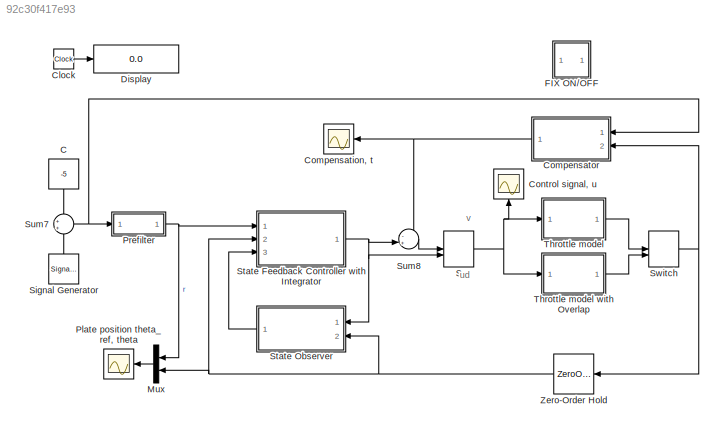
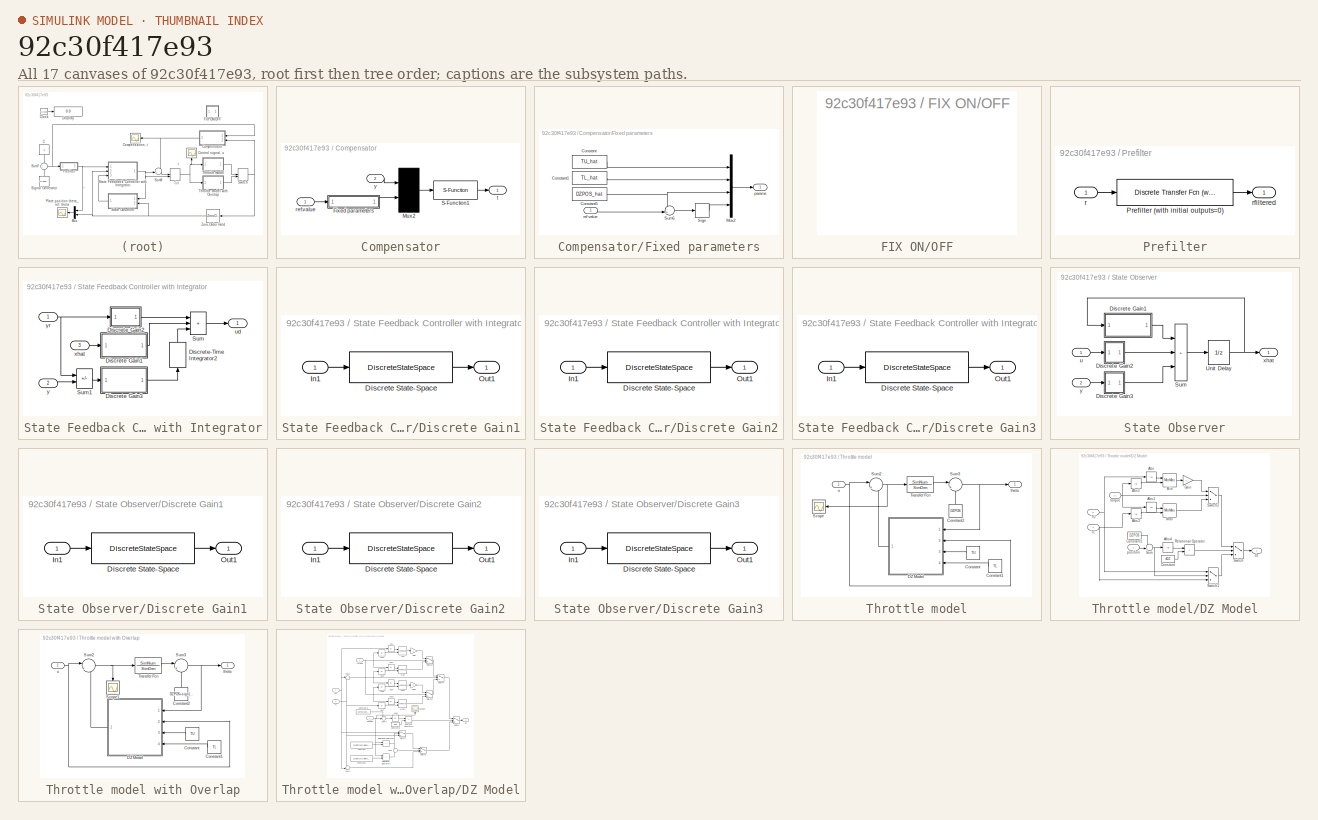
[diagram: thumbnail index - all 17 canvases of the model, root first then tree order]
MODEL mdl_92c30f417e93
KIND model
CONFIG AbsTol = auto
CONFIG EnableMultiTasking = off
CONFIG FixedStep = 0.001
CONFIG MaxStep = auto
CONFIG MinStep = auto
CONFIG RelTol = 1e-3
CONFIG SampleTimeConstraint = Unconstrained
CONFIG SolverName = ode45
CONFIG StartTime = 0.0
CONFIG StopTime = 2
BLOCK [Constant] C
  NameLocation = left
  Value = -5
BLOCK [Clock] Clock
BLOCK [Scope] Compensation, t
  Floating = off
  NumInputPorts = 1
  Ports = [1]
  ScopeSpecificationString = Simulink.scopes.TimeScopeBlockCfg('CurrentConfiguration', extmgr.ConfigurationSet(extmgr.Configuration('Core','General UI',true),extmgr.Configuration('Core','Source UI',true),extmgr.Configuration('Sources','WiredSimulink',true,'DataLoggingSaveFormat','StructureWithTime','DataLoggingLimitDataPoints',true,'DataLoggingDecimation','1','DataLoggingDecimateData',true),extmgr.Configuration('Visuals','Tim...<+1650ch>
BLOCK [SubSystem] Compensator
  Ports = [2, 1]
  RequestExecContextInheritance = off
BLOCK [SubSystem] Compensator/Fixed parameters
  Ports = [1, 1]
  RequestExecContextInheritance = off
BLOCK [Constant] Compensator/Fixed parameters/Constant
  Value = TU_hat
BLOCK [Constant] Compensator/Fixed parameters/Constant1
  Value = TL_hat
BLOCK [Constant] Compensator/Fixed parameters/Constant5
  NameLocation = top
  Value = DZPOS_hat
BLOCK [Mux] Compensator/Fixed parameters/Mux2
  DisplayOption = bar
  Ports = [4, 1]
BLOCK [Signum] Compensator/Fixed parameters/Sign
BLOCK [Sum] Compensator/Fixed parameters/Sum6
  InputSameDT = on
  Inputs = -+|
  OutDataTypeStr = Inherit: Same as first input
  Ports = [2, 1]
  SaturateOnIntegerOverflow = on
BLOCK [Outport] Compensator/Fixed parameters/params
BLOCK [Inport] Compensator/Fixed parameters/ref value
BLOCK [Mux] Compensator/Mux2
  Inputs = 2
  Ports = [2, 1]
BLOCK [S-Function] Compensator/S-Function1
  EnableBusSupport = off
  FunctionName = compensator2
  Parameters = h USE_FIX*fixwidth/2 -USE_FIX*fixwidth/2
  Ports = [1, 1]
  SFcnIsStateOwnerBlock = off
  SFunctionDeploymentMode = off
BLOCK [Inport] Compensator/ref.value
BLOCK [Outport] Compensator/t
BLOCK [Inport] Compensator/y
  Port = 2
BLOCK [Scope] Control signal, u
  Floating = off
  NameLocation = left
  NumInputPorts = 1
  Ports = [1]
  ScopeSpecificationString = Simulink.scopes.TimeScopeBlockCfg('CurrentConfiguration', extmgr.ConfigurationSet(extmgr.Configuration('Core','General UI',true),extmgr.Configuration('Core','Source UI',true),extmgr.Configuration('Sources','WiredSimulink',true,'DataLoggingSaveFormat','StructureWithTime','DataLoggingLimitDataPoints',true,'DataLoggingDecimation','1','DataLoggingDecimateData',true),extmgr.Configuration('Visuals','Tim...<+1676ch>
BLOCK [Display] Display
  Decimation = 1
  Ports = [1]
  SampleTime = 0.1
BLOCK [SubSystem] FIX ON//OFF
  Description = Fix ON/OFF
  OpenFcn = fix_opencfg
  Ports = []
  RequestExecContextInheritance = off
BLOCK [Mux] Mux
  DisplayOption = bar
  Inputs = 2
  NameLocation = top
  Ports = [2, 1]
BLOCK [Scope] Plate position theta_ref, theta
  Floating = off
  NumInputPorts = 1
  Ports = [1]
  ScopeSpecificationString = Simulink.scopes.TimeScopeBlockCfg('CurrentConfiguration', extmgr.ConfigurationSet(extmgr.Configuration('Core','General UI',true),extmgr.Configuration('Core','Source UI',true),extmgr.Configuration('Sources','WiredSimulink',true,'DataLoggingSaveFormat','StructureWithTime','DataLoggingDecimation','1','DataLoggingDecimateData',true),extmgr.Configuration('Visuals','Time Domain',true,'SerializedDisplays...<+1645ch>
BLOCK [SubSystem] Prefilter
  Ports = [1, 1]
  RequestExecContextInheritance = off
BLOCK [Reference] Prefilter/Prefilter (with initial outputs=0)  REF=simulink_extras/Additional
Discrete/Discrete
Transfer Fcn
(with initial outputs)
  Ports = [1, 1]
  SourceBlock = simulink_extras/Additional\nDiscrete/Discrete\nTransfer Fcn\n(with initial outputs)
  SourceProductBaseCode = SL
  SourceType = Discrete Transfer Function with Initial Outputs
BLOCK [Inport] Prefilter/r
BLOCK [Outport] Prefilter/rfiltered
BLOCK [ManualSwitch] S
  CurrentSetting = 0
BLOCK [SignalGenerator] Signal Generator
  Amplitude = 5
  NameLocation = right
  Ports = [0, 1]
  WaveForm = square
BLOCK [SubSystem] State Feedback Controller with Integrator
  Ports = [3, 1]
  RequestExecContextInheritance = off
BLOCK [SubSystem] State Feedback Controller with Integrator/Discrete Gain1
  Ports = [1, 1]
  RequestExecContextInheritance = off
BLOCK [DiscreteStateSpace] State Feedback Controller with Integrator/Discrete Gain1/Discrete State-Space
  A = 0
  B = zeros(1,size(K,2))
  C = zeros(size(K,1),1)
  D = K
  SampleTime = h
BLOCK [Inport] State Feedback Controller with Integrator/Discrete Gain1/In1
BLOCK [Outport] State Feedback Controller with Integrator/Discrete Gain1/Out1
BLOCK [SubSystem] State Feedback Controller with Integrator/Discrete Gain2
  Ports = [1, 1]
  RequestExecContextInheritance = off
BLOCK [DiscreteStateSpace] State Feedback Controller with Integrator/Discrete Gain2/Discrete State-Space
  A = 0
  B = zeros(1,size(K,2))
  C = zeros(size(K,1),1)
  D = K
  SampleTime = h
BLOCK [Inport] State Feedback Controller with Integrator/Discrete Gain2/In1
BLOCK [Outport] State Feedback Controller with Integrator/Discrete Gain2/Out1
BLOCK [SubSystem] State Feedback Controller with Integrator/Discrete Gain3
  Ports = [1, 1]
  RequestExecContextInheritance = off
BLOCK [DiscreteStateSpace] State Feedback Controller with Integrator/Discrete Gain3/Discrete State-Space
  A = 0
  B = zeros(1,size(K,2))
  C = zeros(size(K,1),1)
  D = K
  SampleTime = h
BLOCK [Inport] State Feedback Controller with Integrator/Discrete Gain3/In1
BLOCK [Outport] State Feedback Controller with Integrator/Discrete Gain3/Out1
BLOCK [DiscreteIntegrator] State Feedback Controller with Integrator/Discrete-Time Integrator2
  ICPrevOutput = DiscIntNeverNeededParam
  ICPrevScaledInput = DiscIntNeverNeededParam
  NameLocation = right
  Ports = [1, 1]
  SampleTime = h
BLOCK [Sum] State Feedback Controller with Integrator/Sum
  IconShape = rectangular
  InputSameDT = on
  Inputs = +++
  OutDataTypeStr = Inherit: Same as first input
  Ports = [3, 1]
  SaturateOnIntegerOverflow = on
BLOCK [Sum] State Feedback Controller with Integrator/Sum1
  IconShape = rectangular
  InputSameDT = on
  Inputs = +-
  OutDataTypeStr = Inherit: Same as first input
  Ports = [2, 1]
  SaturateOnIntegerOverflow = on
BLOCK [Outport] State Feedback Controller with Integrator/ud
BLOCK [Inport] State Feedback Controller with Integrator/xhat
  Port = 3
BLOCK [Inport] State Feedback Controller with Integrator/y
  Port = 2
BLOCK [Inport] State Feedback Controller with Integrator/yr
BLOCK [SubSystem] State Observer
  Ports = [2, 1]
  RequestExecContextInheritance = off
BLOCK [SubSystem] State Observer/Discrete Gain1
  Ports = [1, 1]
  RequestExecContextInheritance = off
BLOCK [DiscreteStateSpace] State Observer/Discrete Gain1/Discrete State-Space
  A = 0
  B = zeros(1,size(K,2))
  C = zeros(size(K,1),1)
  D = K
  SampleTime = h
BLOCK [Inport] State Observer/Discrete Gain1/In1
BLOCK [Outport] State Observer/Discrete Gain1/Out1
BLOCK [SubSystem] State Observer/Discrete Gain2
  Ports = [1, 1]
  RequestExecContextInheritance = off
BLOCK [DiscreteStateSpace] State Observer/Discrete Gain2/Discrete State-Space
  A = 0
  B = zeros(1,size(K,2))
  C = zeros(size(K,1),1)
  D = K
  SampleTime = h
BLOCK [Inport] State Observer/Discrete Gain2/In1
BLOCK [Outport] State Observer/Discrete Gain2/Out1
BLOCK [SubSystem] State Observer/Discrete Gain3
  Ports = [1, 1]
  RequestExecContextInheritance = off
BLOCK [DiscreteStateSpace] State Observer/Discrete Gain3/Discrete State-Space
  A = 0
  B = zeros(1,size(K,2))
  C = zeros(size(K,1),1)
  D = K
  SampleTime = h
BLOCK [Inport] State Observer/Discrete Gain3/In1
BLOCK [Outport] State Observer/Discrete Gain3/Out1
BLOCK [Sum] State Observer/Sum
  IconShape = rectangular
  InputSameDT = on
  Inputs = +++
  OutDataTypeStr = Inherit: Same as first input
  Ports = [3, 1]
  SaturateOnIntegerOverflow = on
BLOCK [UnitDelay] State Observer/Unit Delay
  HasFrameUpgradeWarning = on
  SampleTime = h
BLOCK [Inport] State Observer/u
BLOCK [Outport] State Observer/xhat
BLOCK [Inport] State Observer/y
  Port = 2
BLOCK [Sum] Sum7
  InputSameDT = on
  OutDataTypeStr = Inherit: Same as first input
  Ports = [2, 1]
  SaturateOnIntegerOverflow = on
BLOCK [Sum] Sum8
  InputSameDT = on
  Inputs = -+|
  OutDataTypeStr = Inherit: Same as first input
  Ports = [2, 1]
  SaturateOnIntegerOverflow = on
BLOCK [ManualSwitch] Switch
BLOCK [SubSystem] Throttle model
  NameLocation = top
  Ports = [1, 1]
  RequestExecContextInheritance = off
BLOCK [SubSystem] Throttle model with Overlap
  Ports = [1, 1]
  RequestExecContextInheritance = off
BLOCK [Constant] Throttle model with Overlap/Constant
  Value = TU
BLOCK [Constant] Throttle model with Overlap/Constant1
  Value = TL
BLOCK [Constant] Throttle model with Overlap/Constant2
  NameLocation = left
  Value = DZPOS+sign(TU+TL)*OVERLAP/2
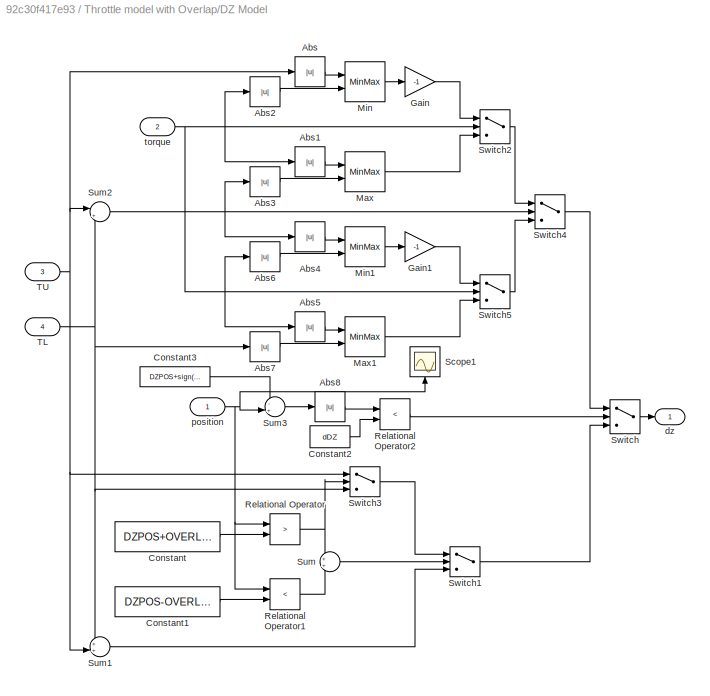
BLOCK [SubSystem] Throttle model with Overlap/DZ Model
  Ports = [4, 1]
  RequestExecContextInheritance = off
BLOCK [Abs] Throttle model with Overlap/DZ Model/Abs
BLOCK [Abs] Throttle model with Overlap/DZ Model/Abs1
BLOCK [Abs] Throttle model with Overlap/DZ Model/Abs2
BLOCK [Abs] Throttle model with Overlap/DZ Model/Abs3
BLOCK [Abs] Throttle model with Overlap/DZ Model/Abs4
BLOCK [Abs] Throttle model with Overlap/DZ Model/Abs5
BLOCK [Abs] Throttle model with Overlap/DZ Model/Abs6
BLOCK [Abs] Throttle model with Overlap/DZ Model/Abs7
BLOCK [Abs] Throttle model with Overlap/DZ Model/Abs8
BLOCK [Constant] Throttle model with Overlap/DZ Model/Constant
  Value = DZPOS+OVERLAP/2
BLOCK [Constant] Throttle model with Overlap/DZ Model/Constant1
  Value = DZPOS-OVERLAP/2
BLOCK [Constant] Throttle model with Overlap/DZ Model/Constant2
  Value = dDZ
BLOCK [Constant] Throttle model with Overlap/DZ Model/Constant3
  Value = DZPOS+sign(TU+TL)*OVERLAP/2
BLOCK [Gain] Throttle model with Overlap/DZ Model/Gain
  Gain = -1
  OutDataTypeStr = Inherit: Same as input
  ParamDataTypeStr = Inherit: Same as input
  SaturateOnIntegerOverflow = on
BLOCK [Gain] Throttle model with Overlap/DZ Model/Gain1
  Gain = -1
  OutDataTypeStr = Inherit: Same as input
  ParamDataTypeStr = Inherit: Same as input
  SaturateOnIntegerOverflow = on
BLOCK [MinMax] Throttle model with Overlap/DZ Model/Max
  InputSameDT = on
  Inputs = 2
  Ports = [2, 1]
  SaturateOnIntegerOverflow = on
BLOCK [MinMax] Throttle model with Overlap/DZ Model/Max1
  InputSameDT = on
  Inputs = 2
  Ports = [2, 1]
  SaturateOnIntegerOverflow = on
BLOCK [MinMax] Throttle model with Overlap/DZ Model/Min
  InputSameDT = on
  Inputs = 2
  Ports = [2, 1]
  SaturateOnIntegerOverflow = on
BLOCK [MinMax] Throttle model with Overlap/DZ Model/Min1
  InputSameDT = on
  Inputs = 2
  Ports = [2, 1]
  SaturateOnIntegerOverflow = on
BLOCK [RelationalOperator] Throttle model with Overlap/DZ Model/Relational Operator
  Operator = >
  Ports = [2, 1]
BLOCK [RelationalOperator] Throttle model with Overlap/DZ Model/Relational Operator1
  Operator = <
  Ports = [2, 1]
BLOCK [RelationalOperator] Throttle model with Overlap/DZ Model/Relational Operator2
  Operator = <
  Ports = [2, 1]
BLOCK [Scope] Throttle model with Overlap/DZ Model/Scope1
  Floating = off
  NameLocation = right
  NumInputPorts = 1
  Ports = [1]
  ScopeSpecificationString = C++SS(StrPVP('Location','[571, 111, 895, 350]'),StrPVP('Open','off'),StrPVP('ZoomMode','xonly'),MxPVP('AxesTitles',54,'struct(''axes1'',''%<SignalLabel>'')'),StrPVP('ShowLegends','off'),StrPVP('YMin','0'),StrPVP('YMax','1.1'),StrPVP('DataFormat','StructureWithTime'),StrPVP('BlockParamSampleTime','0'),StrPVP('LimitDataPoints','on'),StrPVP('Decimation','1'),StrPVP('BlockParamSampleInput','off'))
BLOCK [Sum] Throttle model with Overlap/DZ Model/Sum
  InputSameDT = on
  OutDataTypeStr = Inherit: Same as first input
  Ports = [2, 1]
  SaturateOnIntegerOverflow = on
BLOCK [Sum] Throttle model with Overlap/DZ Model/Sum1
  InputSameDT = on
  Inputs = ++|
  OutDataTypeStr = Inherit: Same as first input
  Ports = [2, 1]
  SaturateOnIntegerOverflow = on
BLOCK [Sum] Throttle model with Overlap/DZ Model/Sum2
  InputSameDT = on
  Inputs = |++
  OutDataTypeStr = Inherit: Same as first input
  Ports = [2, 1]
  SaturateOnIntegerOverflow = on
BLOCK [Sum] Throttle model with Overlap/DZ Model/Sum3
  InputSameDT = on
  Inputs = -+|
  OutDataTypeStr = Inherit: Same as first input
  Ports = [2, 1]
  SaturateOnIntegerOverflow = on
BLOCK [Switch] Throttle model with Overlap/DZ Model/Switch
  Threshold = 0.5
BLOCK [Switch] Throttle model with Overlap/DZ Model/Switch1
  Threshold = 0.5
BLOCK [Switch] Throttle model with Overlap/DZ Model/Switch2
BLOCK [Switch] Throttle model with Overlap/DZ Model/Switch3
  Threshold = 0.5
BLOCK [Switch] Throttle model with Overlap/DZ Model/Switch4
BLOCK [Switch] Throttle model with Overlap/DZ Model/Switch5
BLOCK [Inport] Throttle model with Overlap/DZ Model/TL
  Port = 4
BLOCK [Inport] Throttle model with Overlap/DZ Model/TU
  Port = 3
BLOCK [Outport] Throttle model with Overlap/DZ Model/dz
  InitialOutput = 0
BLOCK [Inport] Throttle model with Overlap/DZ Model/position
BLOCK [Inport] Throttle model with Overlap/DZ Model/torque
  Port = 2
BLOCK [Scope] Throttle model with Overlap/Scope1
  Floating = off
  NameLocation = left
  NumInputPorts = 1
  Ports = [1]
  ScopeSpecificationString = C++SS(StrPVP('Location','[650, 497, 974, 736]'),StrPVP('Open','off'),StrPVP('ZoomMode','xonly'),MxPVP('AxesTitles',54,'struct(''axes1'',''%<SignalLabel>'')'),StrPVP('ShowLegends','off'),StrPVP('YMin','0'),StrPVP('YMax','1.1'),StrPVP('DataFormat','StructureWithTime'),StrPVP('BlockParamSampleTime','0'),StrPVP('LimitDataPoints','on'),StrPVP('Decimation','1'),StrPVP('BlockParamSampleInput','off'))
BLOCK [Sum] Throttle model with Overlap/Sum2
  InputSameDT = on
  Inputs = |++
  OutDataTypeStr = Inherit: Same as first input
  Ports = [2, 1]
  SaturateOnIntegerOverflow = on
BLOCK [Sum] Throttle model with Overlap/Sum3
  InputSameDT = on
  Inputs = |++
  OutDataTypeStr = Inherit: Same as first input
  Ports = [2, 1]
  SaturateOnIntegerOverflow = on
BLOCK [TransferFcn] Throttle model with Overlap/Transfer Fcn
  Denominator = SimDen
  Numerator = SimNum
BLOCK [Outport] Throttle model with Overlap/theta
BLOCK [Inport] Throttle model with Overlap/u
BLOCK [Constant] Throttle model/Constant
  Value = TU
BLOCK [Constant] Throttle model/Constant1
  Value = TL
BLOCK [Constant] Throttle model/Constant2
  NameLocation = left
  Value = DZPOS
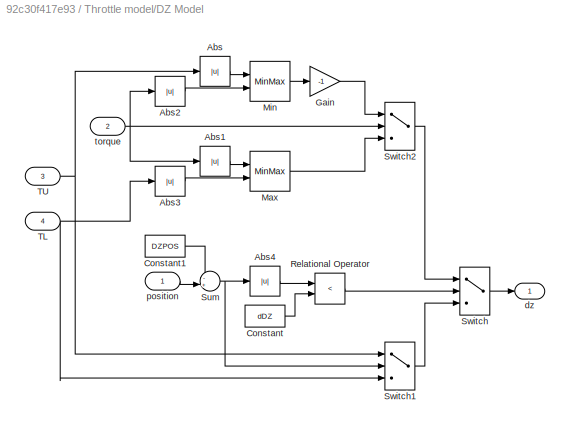
BLOCK [SubSystem] Throttle model/DZ Model
  Ports = [4, 1]
  RequestExecContextInheritance = off
BLOCK [Abs] Throttle model/DZ Model/Abs
BLOCK [Abs] Throttle model/DZ Model/Abs1
BLOCK [Abs] Throttle model/DZ Model/Abs2
BLOCK [Abs] Throttle model/DZ Model/Abs3
BLOCK [Abs] Throttle model/DZ Model/Abs4
BLOCK [Constant] Throttle model/DZ Model/Constant
  Value = dDZ
BLOCK [Constant] Throttle model/DZ Model/Constant1
  Value = DZPOS
BLOCK [Gain] Throttle model/DZ Model/Gain
  Gain = -1
  OutDataTypeStr = Inherit: Same as input
  ParamDataTypeStr = Inherit: Same as input
  SaturateOnIntegerOverflow = on
BLOCK [MinMax] Throttle model/DZ Model/Max
  InputSameDT = on
  Inputs = 2
  Ports = [2, 1]
  SaturateOnIntegerOverflow = on
BLOCK [MinMax] Throttle model/DZ Model/Min
  InputSameDT = on
  Inputs = 2
  Ports = [2, 1]
  SaturateOnIntegerOverflow = on
BLOCK [RelationalOperator] Throttle model/DZ Model/Relational Operator
  Operator = <
  Ports = [2, 1]
BLOCK [Sum] Throttle model/DZ Model/Sum
  InputSameDT = on
  Inputs = -+|
  OutDataTypeStr = Inherit: Same as first input
  Ports = [2, 1]
  SaturateOnIntegerOverflow = on
BLOCK [Switch] Throttle model/DZ Model/Switch
  Threshold = 0.5
BLOCK [Switch] Throttle model/DZ Model/Switch1
BLOCK [Switch] Throttle model/DZ Model/Switch2
BLOCK [Inport] Throttle model/DZ Model/TL
  Port = 4
BLOCK [Inport] Throttle model/DZ Model/TU
  Port = 3
BLOCK [Outport] Throttle model/DZ Model/dz
  InitialOutput = 0
BLOCK [Inport] Throttle model/DZ Model/position
BLOCK [Inport] Throttle model/DZ Model/torque
  Port = 2
BLOCK [Scope] Throttle model/Scope
  Floating = off
  NameLocation = top
  NumInputPorts = 1
  Ports = [1]
  ScopeSpecificationString = C++SS(StrPVP('Location','[335, 97, 660, 335]'),StrPVP('Open','off'),MxPVP('AxesTitles',54,'struct(''axes1'',''%<SignalLabel>'')'),StrPVP('ShowLegends','off'),StrPVP('DataFormat','StructureWithTime'),StrPVP('BlockParamSampleTime','0'),StrPVP('LimitDataPoints','on'),StrPVP('Decimation','1'),StrPVP('BlockParamSampleInput','off'))
BLOCK [Sum] Throttle model/Sum2
  InputSameDT = on
  Inputs = |++
  OutDataTypeStr = Inherit: Same as first input
  Ports = [2, 1]
  SaturateOnIntegerOverflow = on
BLOCK [Sum] Throttle model/Sum3
  InputSameDT = on
  Inputs = |++
  OutDataTypeStr = Inherit: Same as first input
  Ports = [2, 1]
  SaturateOnIntegerOverflow = on
BLOCK [TransferFcn] Throttle model/Transfer Fcn
  Denominator = SimDen
  Numerator = SimNum
BLOCK [Outport] Throttle model/theta
BLOCK [Inport] Throttle model/u
BLOCK [ZeroOrderHold] Zero-Order Hold
  SampleTime = h
ANNOTATION (root): ud
ANNOTATION (root): v
LINE C:1 -> Sum7:1
LINE Clock:1 -> Display:1
LINE Compensator/Fixed parameters/Constant1:1 -> Compensator/Fixed parameters/Mux2:2
NET Compensator/Fixed parameters/Constant5:1 -> Compensator/Fixed parameters/Mux2:3, Compensator/Fixed parameters/Sum6:1
LINE Compensator/Fixed parameters/Constant:1 -> Compensator/Fixed parameters/Mux2:1
LINE Compensator/Fixed parameters/Mux2:1 -> Compensator/Fixed parameters/params:1
LINE Compensator/Fixed parameters/Sign:1 -> Compensator/Fixed parameters/Mux2:4
LINE Compensator/Fixed parameters/Sum6:1 -> Compensator/Fixed parameters/Sign:1
LINE Compensator/Fixed parameters/ref value:1 -> Compensator/Fixed parameters/Sum6:2
LINE Compensator/Fixed parameters:1 -> Compensator/Mux2:2
LINE Compensator/Mux2:1 -> Compensator/S-Function1:1
LINE Compensator/S-Function1:1 -> Compensator/t:1
LINE Compensator/ref.value:1 -> Compensator/Fixed parameters:1
LINE Compensator/y:1 -> Compensator/Mux2:1
NET Compensator:1 -> Compensation, t:1, Sum8:1
LINE Mux:1 -> Plate position theta_ref, theta:1
LINE Prefilter/Prefilter (with initial outputs=0):1 -> Prefilter/rfiltered:1
LINE Prefilter/r:1 -> Prefilter/Prefilter (with initial outputs=0):1
NET Prefilter:1 -> Mux:1, State Feedback Controller with Integrator:1
NET S:1 -> Control signal, u:1, Throttle model with Overlap:1, Throttle model:1
LINE Signal Generator:1 -> Sum7:2
LINE State Feedback Controller with Integrator/Discrete Gain1/Discrete State-Space:1 -> State Feedback Controller with Integrator/Discrete Gain1/Out1:1
LINE State Feedback Controller with Integrator/Discrete Gain1/In1:1 -> State Feedback Controller with Integrator/Discrete Gain1/Discrete State-Space:1
LINE State Feedback Controller with Integrator/Discrete Gain1:1 -> State Feedback Controller with Integrator/Sum:2
LINE State Feedback Controller with Integrator/Discrete Gain2/Discrete State-Space:1 -> State Feedback Controller with Integrator/Discrete Gain2/Out1:1
LINE State Feedback Controller with Integrator/Discrete Gain2/In1:1 -> State Feedback Controller with Integrator/Discrete Gain2/Discrete State-Space:1
LINE State Feedback Controller with Integrator/Discrete Gain2:1 -> State Feedback Controller with Integrator/Sum:1
LINE State Feedback Controller with Integrator/Discrete Gain3/Discrete State-Space:1 -> State Feedback Controller with Integrator/Discrete Gain3/Out1:1
LINE State Feedback Controller with Integrator/Discrete Gain3/In1:1 -> State Feedback Controller with Integrator/Discrete Gain3/Discrete State-Space:1
LINE State Feedback Controller with Integrator/Discrete Gain3:1 -> State Feedback Controller with Integrator/Discrete-Time Integrator2:1
LINE State Feedback Controller with Integrator/Discrete-Time Integrator2:1 -> State Feedback Controller with Integrator/Sum:3
LINE State Feedback Controller with Integrator/Sum1:1 -> State Feedback Controller with Integrator/Discrete Gain3:1
LINE State Feedback Controller with Integrator/Sum:1 -> State Feedback Controller with Integrator/ud:1
LINE State Feedback Controller with Integrator/xhat:1 -> State Feedback Controller with Integrator/Discrete Gain1:1
LINE State Feedback Controller with Integrator/y:1 -> State Feedback Controller with Integrator/Sum1:2
NET State Feedback Controller with Integrator/yr:1 -> State Feedback Controller with Integrator/Discrete Gain2:1, State Feedback Controller with Integrator/Sum1:1
NET State Feedback Controller with Integrator:1 -> S:2, State Observer:1, Sum8:2
LINE State Observer/Discrete Gain1/Discrete State-Space:1 -> State Observer/Discrete Gain1/Out1:1
LINE State Observer/Discrete Gain1/In1:1 -> State Observer/Discrete Gain1/Discrete State-Space:1
LINE State Observer/Discrete Gain1:1 -> State Observer/Sum:1
LINE State Observer/Discrete Gain2/Discrete State-Space:1 -> State Observer/Discrete Gain2/Out1:1
LINE State Observer/Discrete Gain2/In1:1 -> State Observer/Discrete Gain2/Discrete State-Space:1
LINE State Observer/Discrete Gain2:1 -> State Observer/Sum:2
LINE State Observer/Discrete Gain3/Discrete State-Space:1 -> State Observer/Discrete Gain3/Out1:1
LINE State Observer/Discrete Gain3/In1:1 -> State Observer/Discrete Gain3/Discrete State-Space:1
LINE State Observer/Discrete Gain3:1 -> State Observer/Sum:3
LINE State Observer/Sum:1 -> State Observer/Unit Delay:1
NET State Observer/Unit Delay:1 -> State Observer/Discrete Gain1:1, State Observer/xhat:1
LINE State Observer/u:1 -> State Observer/Discrete Gain2:1
LINE State Observer/y:1 -> State Observer/Discrete Gain3:1
LINE State Observer:1 -> State Feedback Controller with Integrator:3
NET Sum7:1 -> Compensator:1, Prefilter:1
LINE Sum8:1 -> S:1
NET Switch:1 -> Compensator:2, Zero-Order Hold:1
LINE Throttle model with Overlap/Constant1:1 -> Throttle model with Overlap/DZ Model:4
LINE Throttle model with Overlap/Constant2:1 -> Throttle model with Overlap/Sum3:2
LINE Throttle model with Overlap/Constant:1 -> Throttle model with Overlap/DZ Model:3
LINE Throttle model with Overlap/DZ Model/Abs1:1 -> Throttle model with Overlap/DZ Model/Max:1
LINE Throttle model with Overlap/DZ Model/Abs2:1 -> Throttle model with Overlap/DZ Model/Min:2
LINE Throttle model with Overlap/DZ Model/Abs3:1 -> Throttle model with Overlap/DZ Model/Max:2
LINE Throttle model with Overlap/DZ Model/Abs4:1 -> Throttle model with Overlap/DZ Model/Min1:1
LINE Throttle model with Overlap/DZ Model/Abs5:1 -> Throttle model with Overlap/DZ Model/Max1:1
LINE Throttle model with Overlap/DZ Model/Abs6:1 -> Throttle model with Overlap/DZ Model/Min1:2
LINE Throttle model with Overlap/DZ Model/Abs7:1 -> Throttle model with Overlap/DZ Model/Max1:2
LINE Throttle model with Overlap/DZ Model/Abs8:1 -> Throttle model with Overlap/DZ Model/Relational Operator2:1
LINE Throttle model with Overlap/DZ Model/Abs:1 -> Throttle model with Overlap/DZ Model/Min:1
LINE Throttle model with Overlap/DZ Model/Constant1:1 -> Throttle model with Overlap/DZ Model/Relational Operator1:2
LINE Throttle model with Overlap/DZ Model/Constant2:1 -> Throttle model with Overlap/DZ Model/Relational Operator2:2
LINE Throttle model with Overlap/DZ Model/Constant3:1 -> Throttle model with Overlap/DZ Model/Sum3:1
LINE Throttle model with Overlap/DZ Model/Constant:1 -> Throttle model with Overlap/DZ Model/Relational Operator:2
LINE Throttle model with Overlap/DZ Model/Gain1:1 -> Throttle model with Overlap/DZ Model/Switch5:1
LINE Throttle model with Overlap/DZ Model/Gain:1 -> Throttle model with Overlap/DZ Model/Switch2:1
LINE Throttle model with Overlap/DZ Model/Max1:1 -> Throttle model with Overlap/DZ Model/Switch5:3
LINE Throttle model with Overlap/DZ Model/Max:1 -> Throttle model with Overlap/DZ Model/Switch2:3
LINE Throttle model with Overlap/DZ Model/Min1:1 -> Throttle model with Overlap/DZ Model/Gain1:1
LINE Throttle model with Overlap/DZ Model/Min:1 -> Throttle model with Overlap/DZ Model/Gain:1
LINE Throttle model with Overlap/DZ Model/Relational Operator1:1 -> Throttle model with Overlap/DZ Model/Sum:2
LINE Throttle model with Overlap/DZ Model/Relational Operator2:1 -> Throttle model with Overlap/DZ Model/Switch:2
NET Throttle model with Overlap/DZ Model/Relational Operator:1 -> Throttle model with Overlap/DZ Model/Sum:1, Throttle model with Overlap/DZ Model/Switch3:2
LINE Throttle model with Overlap/DZ Model/Sum1:1 -> Throttle model with Overlap/DZ Model/Switch1:3
NET Throttle model with Overlap/DZ Model/Sum2:1 -> Throttle model with Overlap/DZ Model/Abs3:1, Throttle model with Overlap/DZ Model/Abs4:1, Throttle model with Overlap/DZ Model/Switch4:2
LINE Throttle model with Overlap/DZ Model/Sum3:1 -> Throttle model with Overlap/DZ Model/Abs8:1
LINE Throttle model with Overlap/DZ Model/Sum:1 -> Throttle model with Overlap/DZ Model/Switch1:2
LINE Throttle model with Overlap/DZ Model/Switch1:1 -> Throttle model with Overlap/DZ Model/Switch:3
LINE Throttle model with Overlap/DZ Model/Switch2:1 -> Throttle model with Overlap/DZ Model/Switch4:1
LINE Throttle model with Overlap/DZ Model/Switch3:1 -> Throttle model with Overlap/DZ Model/Switch1:1
LINE Throttle model with Overlap/DZ Model/Switch4:1 -> Throttle model with Overlap/DZ Model/Switch:1
LINE Throttle model with Overlap/DZ Model/Switch5:1 -> Throttle model with Overlap/DZ Model/Switch4:3
LINE Throttle model with Overlap/DZ Model/Switch:1 -> Throttle model with Overlap/DZ Model/dz:1
NET Throttle model with Overlap/DZ Model/TL:1 -> Throttle model with Overlap/DZ Model/Abs7:1, Throttle model with Overlap/DZ Model/Sum1:1, Throttle model with Overlap/DZ Model/Sum2:2, Throttle model with Overlap/DZ Model/Switch3:3
NET Throttle model with Overlap/DZ Model/TU:1 -> Throttle model with Overlap/DZ Model/Abs:1, Throttle model with Overlap/DZ Model/Sum1:2, Throttle model with Overlap/DZ Model/Sum2:1, Throttle model with Overlap/DZ Model/Switch3:1
NET Throttle model with Overlap/DZ Model/position:1 -> Throttle model with Overlap/DZ Model/Relational Operator1:1, Throttle model with Overlap/DZ Model/Relational Operator:1, Throttle model with Overlap/DZ Model/Scope1:1, Throttle model with Overlap/DZ Model/Sum3:2
NET Throttle model with Overlap/DZ Model/torque:1 -> Throttle model with Overlap/DZ Model/Abs1:1, Throttle model with Overlap/DZ Model/Abs2:1, Throttle model with Overlap/DZ Model/Abs5:1, Throttle model with Overlap/DZ Model/Abs6:1, Throttle model with Overlap/DZ Model/Switch2:2, Throttle model with Overlap/DZ Model/Switch5:2
LINE Throttle model with Overlap/DZ Model:1 -> Throttle model with Overlap/Sum2:2
NET Throttle model with Overlap/Sum2:1 -> Throttle model with Overlap/Scope1:1, Throttle model with Overlap/Transfer Fcn:1
NET Throttle model with Overlap/Sum3:1 -> Throttle model with Overlap/DZ Model:1, Throttle model with Overlap/theta:1
LINE Throttle model with Overlap/Transfer Fcn:1 -> Throttle model with Overlap/Sum3:1
NET Throttle model with Overlap/u:1 -> Throttle model with Overlap/DZ Model:2, Throttle model with Overlap/Sum2:1
LINE Throttle model with Overlap:1 -> Switch:2
LINE Throttle model/Constant1:1 -> Throttle model/DZ Model:4
LINE Throttle model/Constant2:1 -> Throttle model/Sum3:2
LINE Throttle model/Constant:1 -> Throttle model/DZ Model:3
LINE Throttle model/DZ Model/Abs1:1 -> Throttle model/DZ Model/Max:1
LINE Throttle model/DZ Model/Abs2:1 -> Throttle model/DZ Model/Min:2
LINE Throttle model/DZ Model/Abs3:1 -> Throttle model/DZ Model/Max:2
LINE Throttle model/DZ Model/Abs4:1 -> Throttle model/DZ Model/Relational Operator:1
LINE Throttle model/DZ Model/Abs:1 -> Throttle model/DZ Model/Min:1
LINE Throttle model/DZ Model/Constant1:1 -> Throttle model/DZ Model/Sum:1
LINE Throttle model/DZ Model/Constant:1 -> Throttle model/DZ Model/Relational Operator:2
LINE Throttle model/DZ Model/Gain:1 -> Throttle model/DZ Model/Switch2:1
LINE Throttle model/DZ Model/Max:1 -> Throttle model/DZ Model/Switch2:3
LINE Throttle model/DZ Model/Min:1 -> Throttle model/DZ Model/Gain:1
LINE Throttle model/DZ Model/Relational Operator:1 -> Throttle model/DZ Model/Switch:2
NET Throttle model/DZ Model/Sum:1 -> Throttle model/DZ Model/Abs4:1, Throttle model/DZ Model/Switch1:2
LINE Throttle model/DZ Model/Switch1:1 -> Throttle model/DZ Model/Switch:3
LINE Throttle model/DZ Model/Switch2:1 -> Throttle model/DZ Model/Switch:1
LINE Throttle model/DZ Model/Switch:1 -> Throttle model/DZ Model/dz:1
NET Throttle model/DZ Model/TL:1 -> Throttle model/DZ Model/Abs3:1, Throttle model/DZ Model/Switch1:3
NET Throttle model/DZ Model/TU:1 -> Throttle model/DZ Model/Abs:1, Throttle model/DZ Model/Switch1:1
LINE Throttle model/DZ Model/position:1 -> Throttle model/DZ Model/Sum:2
NET Throttle model/DZ Model/torque:1 -> Throttle model/DZ Model/Abs1:1, Throttle model/DZ Model/Abs2:1, Throttle model/DZ Model/Switch2:2
LINE Throttle model/DZ Model:1 -> Throttle model/Sum2:2
NET Throttle model/Sum2:1 -> Throttle model/Scope:1, Throttle model/Transfer Fcn:1
NET Throttle model/Sum3:1 -> Throttle model/DZ Model:1, Throttle model/theta:1
LINE Throttle model/Transfer Fcn:1 -> Throttle model/Sum3:1
NET Throttle model/u:1 -> Throttle model/DZ Model:2, Throttle model/Sum2:1
LINE Throttle model:1 -> Switch:1
NET Zero-Order Hold:1 -> Mux:2, State Feedback Controller with Integrator:2, State Observer:2
note: NET lines group one-source signal fan-out (src -> all destinations, sorted); 1:1 wires keep LINE
